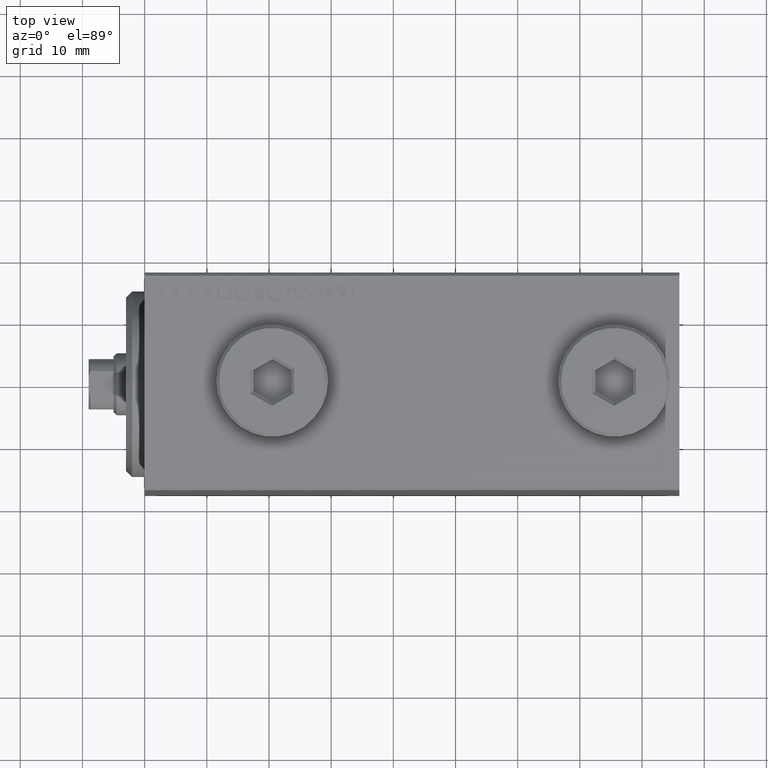
[diagram: clean part render]
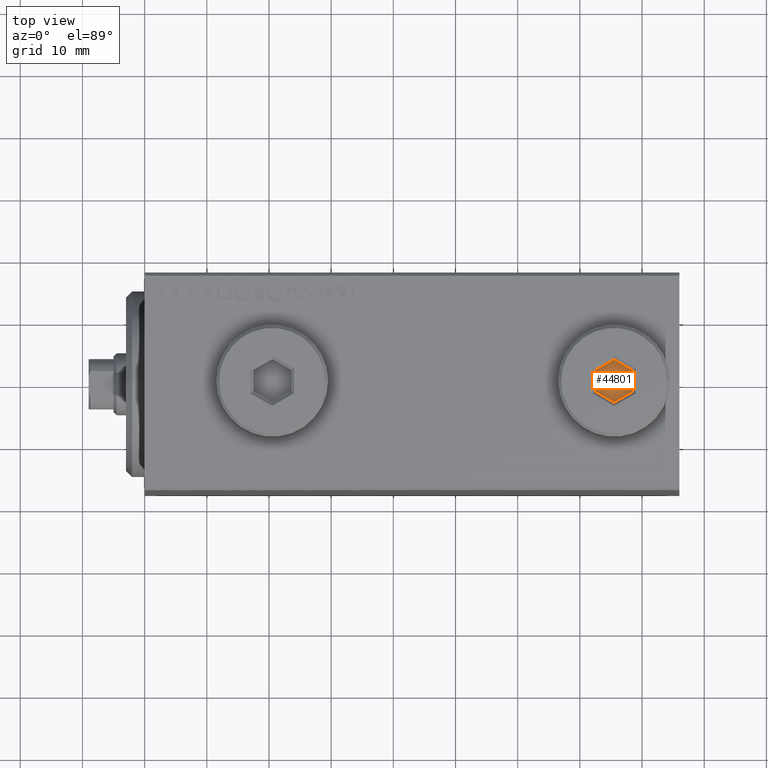
[diagram: same view with one face highlighted and labeled with its STEP entity id]
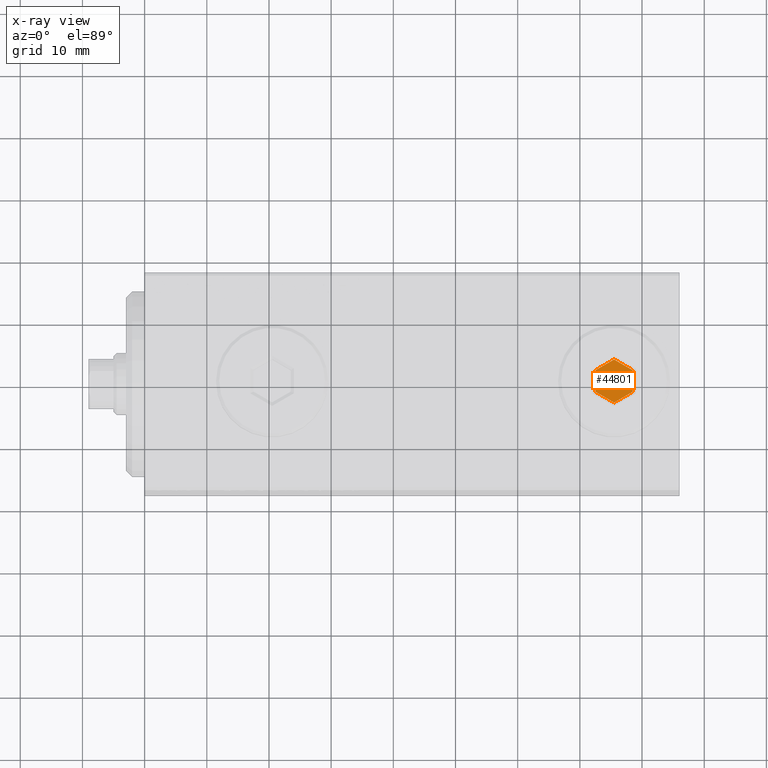
[diagram: x-ray of the same camera — body ghosted, the highlighted face saturated]
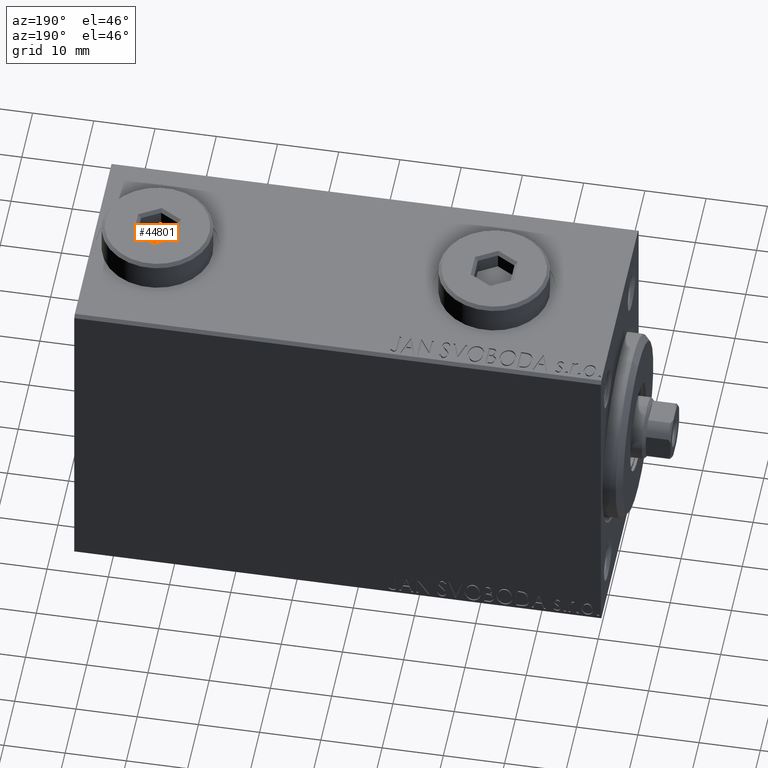
[diagram: same view with one face highlighted and labeled with its STEP entity id]
A machine part, top view. The second image highlights one B-rep face of the part: STEP entity #44801.
The next image is the same camera in x-ray: the body ghosted, the highlighted face saturated — about 0% of this face is hidden behind the body in this view.
A second angle (auxiliary view) of the same face is appended — the face is thin or edge-on in the first view.
In plain terms, the highlighted planar face has unit normal (0, 0, 1).
Its self-contained STEP definition (entity closure, byte-faithful):
#728 = VERTEX_POINT ( 'NONE', #7630 ) ;
#2059 = AXIS2_PLACEMENT_3D ( 'NONE', #43229, #15109, #18782 ) ;
#2230 = VERTEX_POINT ( 'NONE', #36058 ) ;
#3603 = CARTESIAN_POINT ( 'NONE',  ( -3.000000000000000000, -1.732050807568877415, 2.000000000000000000 ) ) ;
#4428 = CARTESIAN_POINT ( 'NONE',  ( 0.000000000000000000, 3.464101615137754386, 2.000000000000000000 ) ) ;
#5868 = LINE ( 'NONE', #12990, #36299 ) ;
#6251 = LINE ( 'NONE', #13381, #6422 ) ;
#6422 = VECTOR ( 'NONE', #23256, 1000.000000000000227 ) ;
#7483 = VERTEX_POINT ( 'NONE', #4428 ) ;
#7630 = CARTESIAN_POINT ( 'NONE',  ( -3.000000000000000000, 1.732050807568878081, 2.000000000000000000 ) ) ;
#8004 = PLANE ( 'NONE',  #2059 ) ;
#8035 = EDGE_CURVE ( 'NONE', #7483, #728, #6251, .T. ) ;
#9413 = EDGE_LOOP ( 'NONE', ( #40777, #41492, #24212, #40732, #17205, #12873 ) ) ;
#10510 = EDGE_CURVE ( 'NONE', #10755, #44803, #33486, .T. ) ;
#10755 = VERTEX_POINT ( 'NONE', #39048 ) ;
#10867 = VECTOR ( 'NONE', #16225, 1000.000000000000000 ) ;
#12873 = ORIENTED_EDGE ( 'NONE', *, *, #10510, .T. ) ;
#12990 = CARTESIAN_POINT ( 'NONE',  ( -3.000000000000000000, 1.732050807568878081, 2.000000000000000000 ) ) ;
#13381 = CARTESIAN_POINT ( 'NONE',  ( 0.000000000000000000, 3.464101615137754386, 2.000000000000000000 ) ) ;
#14663 = CARTESIAN_POINT ( 'NONE',  ( -1.288750986297053243E-16, -3.464101615137754830, 2.000000000000000000 ) ) ;
#14890 = EDGE_CURVE ( 'NONE', #44652, #10755, #35760, .T. ) ;
#15066 = EDGE_CURVE ( 'NONE', #44803, #7483, #23964, .T. ) ;
#15109 = DIRECTION ( 'NONE',  ( 0.000000000000000000, 0.000000000000000000, 1.000000000000000000 ) ) ;
#16225 = DIRECTION ( 'NONE',  ( 0.000000000000000000, 1.000000000000000000, 0.000000000000000000 ) ) ;
#17205 = ORIENTED_EDGE ( 'NONE', *, *, #14890, .T. ) ;
#18015 = DIRECTION ( 'NONE',  ( 0.8660254037844387076, 0.4999999999999998335, 0.000000000000000000 ) ) ;
#18556 = FACE_OUTER_BOUND ( 'NONE', #9413, .T. ) ;
#18782 = DIRECTION ( 'NONE',  ( 1.000000000000000000, 0.000000000000000000, -0.000000000000000000 ) ) ;
#20050 = CARTESIAN_POINT ( 'NONE',  ( 3.000000000000000000, 1.732050807568877859, 2.000000000000000000 ) ) ;
#23256 = DIRECTION ( 'NONE',  ( -0.8660254037844387076, -0.4999999999999997780, 0.000000000000000000 ) ) ;
#23830 = EDGE_CURVE ( 'NONE', #2230, #44652, #35114, .T. ) ;
#23964 = LINE ( 'NONE', #20050, #38844 ) ;
#24212 = ORIENTED_EDGE ( 'NONE', *, *, #32123, .T. ) ;
#26566 = CARTESIAN_POINT ( 'NONE',  ( 3.000000000000000000, -1.732050807568878303, 2.000000000000000000 ) ) ;
#26735 = DIRECTION ( 'NONE',  ( -0.8660254037844387076, 0.4999999999999998335, 0.000000000000000000 ) ) ;
#28179 = DIRECTION ( 'NONE',  ( 0.8660254037844385966, -0.4999999999999998890, 0.000000000000000000 ) ) ;
#30018 = DIRECTION ( 'NONE',  ( 0.000000000000000000, -1.000000000000000000, 0.000000000000000000 ) ) ;
#31399 = CARTESIAN_POINT ( 'NONE',  ( -1.288750986297053243E-16, -3.464101615137754830, 2.000000000000000000 ) ) ;
#32123 = EDGE_CURVE ( 'NONE', #728, #2230, #5868, .T. ) ;
#33486 = LINE ( 'NONE', #26566, #10867 ) ;
#35114 = LINE ( 'NONE', #3603, #42745 ) ;
#35760 = LINE ( 'NONE', #31399, #43248 ) ;
#36058 = CARTESIAN_POINT ( 'NONE',  ( -3.000000000000000000, -1.732050807568877415, 2.000000000000000000 ) ) ;
#36299 = VECTOR ( 'NONE', #30018, 1000.000000000000000 ) ;
#38844 = VECTOR ( 'NONE', #26735, 1000.000000000000000 ) ;
#39048 = CARTESIAN_POINT ( 'NONE',  ( 3.000000000000000000, -1.732050807568878303, 2.000000000000000000 ) ) ;
#39540 = CARTESIAN_POINT ( 'NONE',  ( 3.000000000000000000, 1.732050807568877859, 2.000000000000000000 ) ) ;
#40732 = ORIENTED_EDGE ( 'NONE', *, *, #23830, .T. ) ;
#40777 = ORIENTED_EDGE ( 'NONE', *, *, #15066, .T. ) ;
#41492 = ORIENTED_EDGE ( 'NONE', *, *, #8035, .T. ) ;
#42745 = VECTOR ( 'NONE', #28179, 1000.000000000000227 ) ;
#43229 = CARTESIAN_POINT ( 'NONE',  ( 0.000000000000000000, 0.000000000000000000, 2.000000000000000000 ) ) ;
#43248 = VECTOR ( 'NONE', #18015, 1000.000000000000000 ) ;
#44652 = VERTEX_POINT ( 'NONE', #14663 ) ;
#44801 = ADVANCED_FACE ( 'NONE', ( #18556 ), #8004, .T. ) ;
#44803 = VERTEX_POINT ( 'NONE', #39540 ) ;